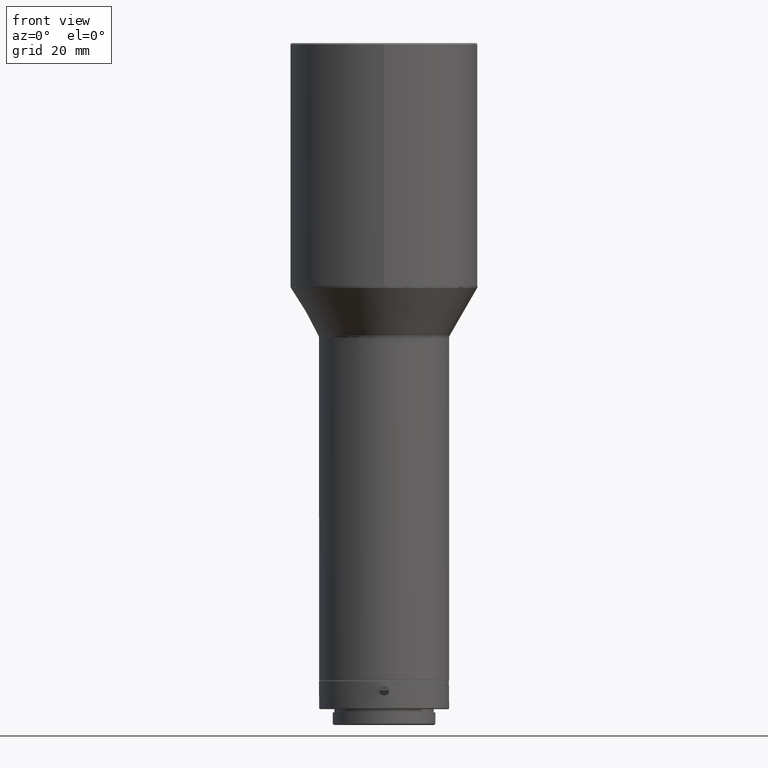
[diagram: clean part render]
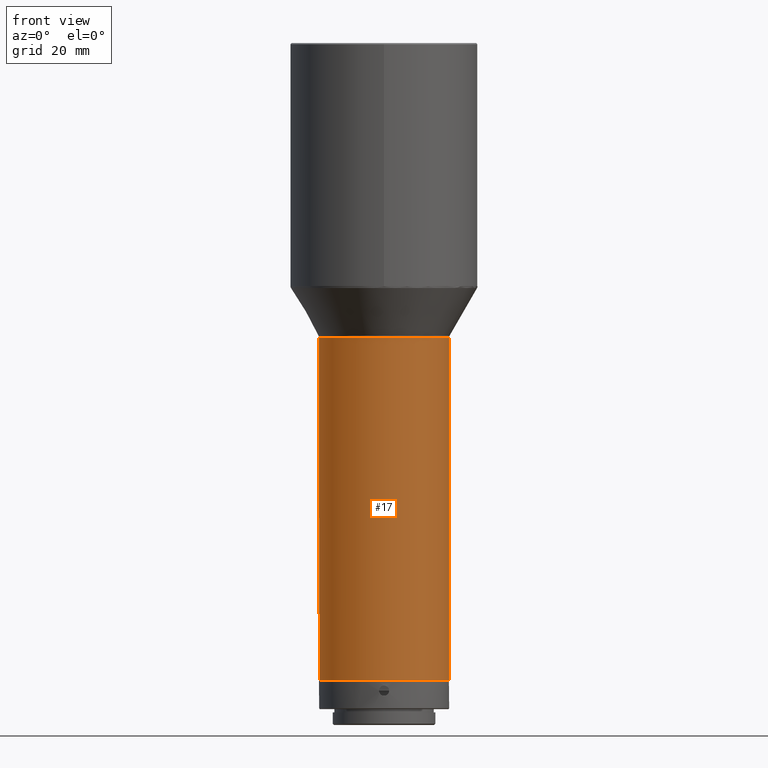
[diagram: same view with one face highlighted and labeled with its STEP entity id]
A machine part, front view. The second image highlights one B-rep face of the part: STEP entity #17.
In plain terms, the highlighted cylindrical surface (bore or boss wall) has radius 16 mm, axis along (0, 0, 1).
Its self-contained STEP definition (entity closure, byte-faithful):
#17 = ADVANCED_FACE ( 'NONE', ( #449, #857 ), #773, .T. ) ;
#37 = CARTESIAN_POINT ( 'NONE',  ( 16.00000000000011369, -1.542614433684811596E-14, -1022.392304845412468 ) ) ;
#49 = DIRECTION ( 'NONE',  ( 0.000000000000000000, -1.000000000000000000, 0.000000000000000000 ) ) ;
#65 = CARTESIAN_POINT ( 'NONE',  ( 1.140131789119417168E-13, -1.620914200816251199E-14, -1106.635156000000279 ) ) ;
#77 = DIRECTION ( 'NONE',  ( 4.930380657631324879E-32, 1.387225799431353182E-18, 1.000000000000000000 ) ) ;
#110 = DIRECTION ( 'NONE',  ( -4.930380657631324879E-32, -1.387225799431353182E-18, -1.000000000000000000 ) ) ;
#111 = CIRCLE ( 'NONE', #722, 16.00000000000000000 ) ;
#131 = EDGE_CURVE ( 'NONE', #534, #534, #556, .T. ) ;
#180 = ORIENTED_EDGE ( 'NONE', *, *, #131, .T. ) ;
#200 = EDGE_LOOP ( 'NONE', ( #1069 ) ) ;
#212 = VERTEX_POINT ( 'NONE', #37 ) ;
#226 = DIRECTION ( 'NONE',  ( 0.000000000000000000, -1.000000000000000000, 0.000000000000000000 ) ) ;
#376 = EDGE_CURVE ( 'NONE', #212, #212, #111, .T. ) ;
#442 = CARTESIAN_POINT ( 'NONE',  ( 1.140131789119417168E-13, -1.609227815162320989E-14, -1022.392304845412468 ) ) ;
#449 = FACE_OUTER_BOUND ( 'NONE', #200, .T. ) ;
#525 = DIRECTION ( 'NONE',  ( 1.000000000000000000, 4.163336342344340724E-17, 0.000000000000000000 ) ) ;
#534 = VERTEX_POINT ( 'NONE', #781 ) ;
#556 = CIRCLE ( 'NONE', #1057, 15.99999999999998579 ) ;
#604 = EDGE_LOOP ( 'NONE', ( #180 ) ) ;
#722 = AXIS2_PLACEMENT_3D ( 'NONE', #442, #110, #525 ) ;
#773 = CYLINDRICAL_SURFACE ( 'NONE', #1075, 15.99999999999998579 ) ;
#781 = CARTESIAN_POINT ( 'NONE',  ( 1.140131789119417168E-13, -16.00000000000000355, -1106.635156000000279 ) ) ;
#857 = FACE_OUTER_BOUND ( 'NONE', #604, .T. ) ;
#874 = CARTESIAN_POINT ( 'NONE',  ( 1.140131789119417168E-13, -1.599185367866135417E-14, -950.0000000000000000 ) ) ;
#940 = DIRECTION ( 'NONE',  ( 4.930380657631324879E-32, 1.387225799431353182E-18, 1.000000000000000000 ) ) ;
#1057 = AXIS2_PLACEMENT_3D ( 'NONE', #65, #77, #226 ) ;
#1069 = ORIENTED_EDGE ( 'NONE', *, *, #376, .T. ) ;
#1075 = AXIS2_PLACEMENT_3D ( 'NONE', #874, #940, #49 ) ;